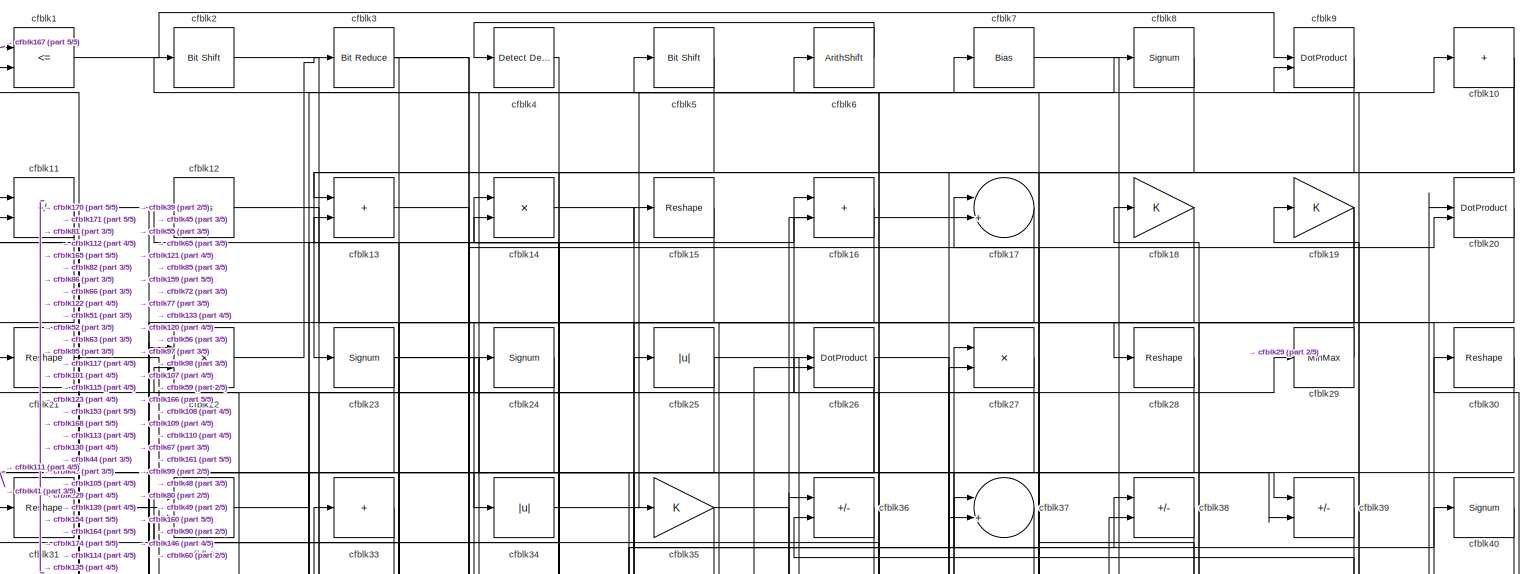
[diagram: root canvas - part 1/5, full width, top band]
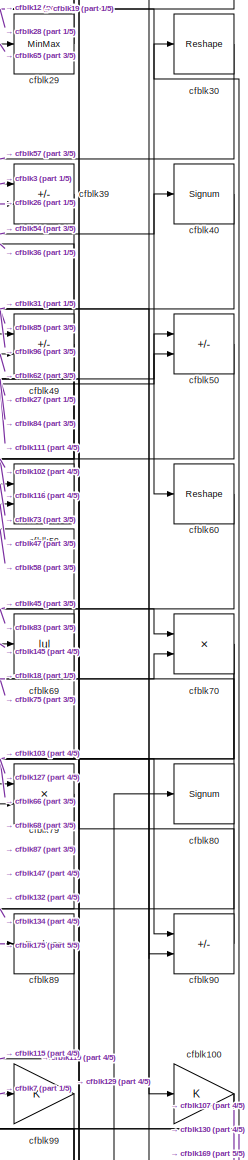
[diagram: root canvas - part 2/5, middle right region]
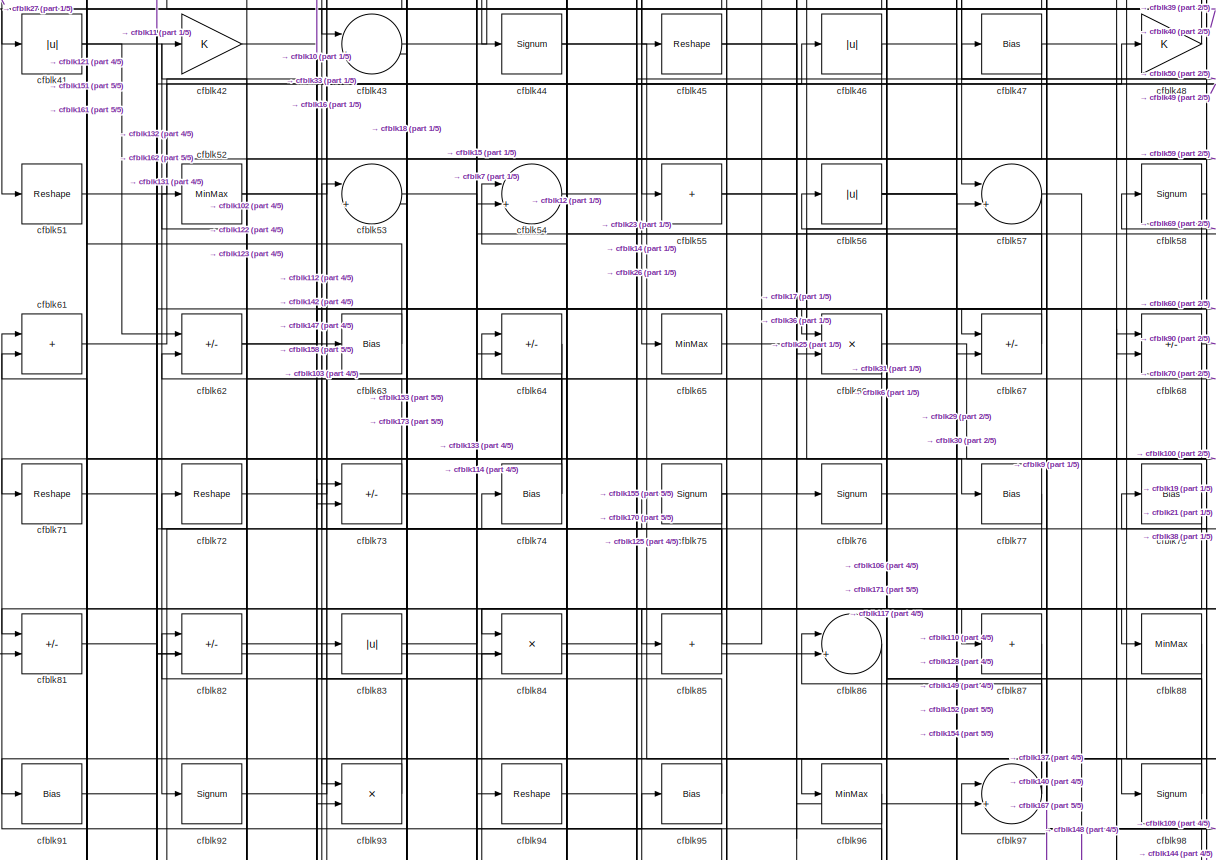
[diagram: root canvas - part 3/5, full width, middle band]
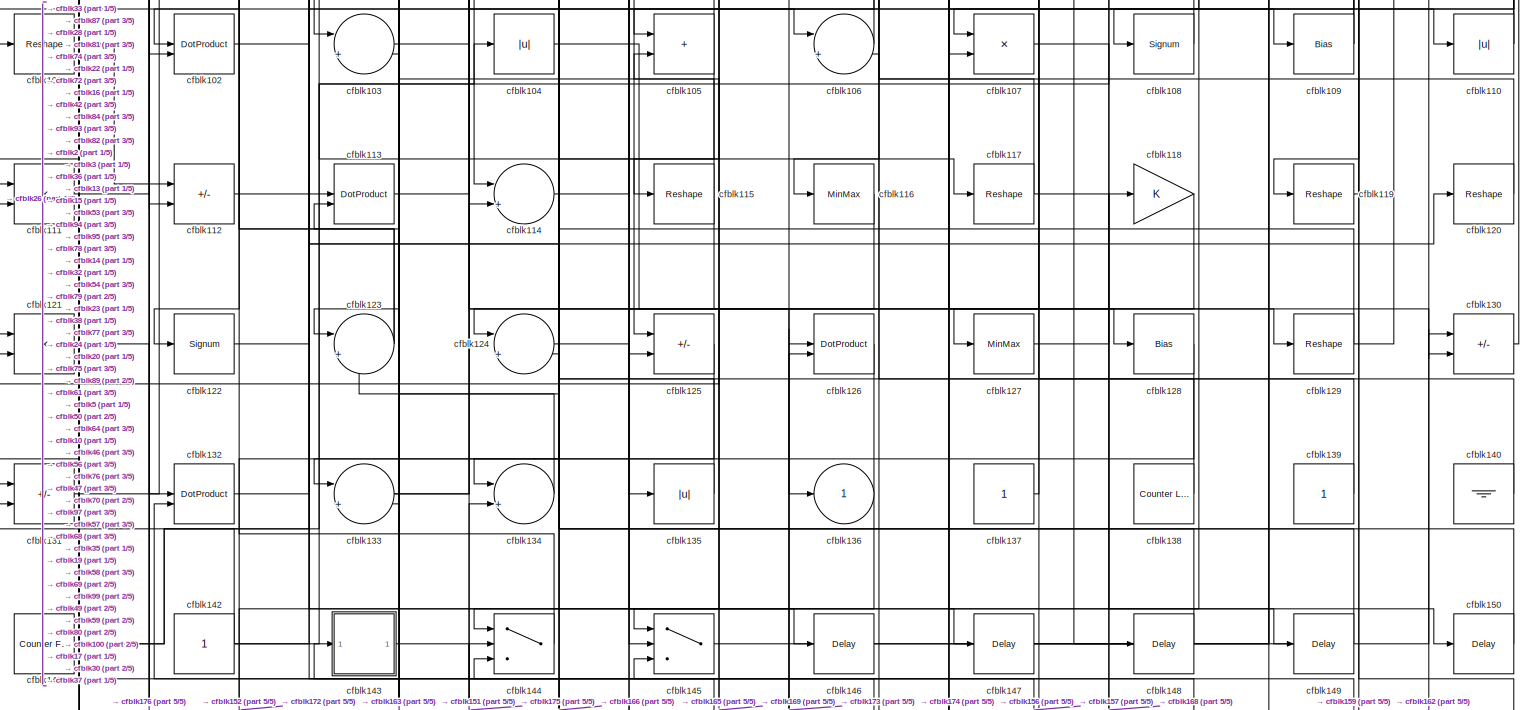
[diagram: root canvas - part 4/5, full width, bottom band]
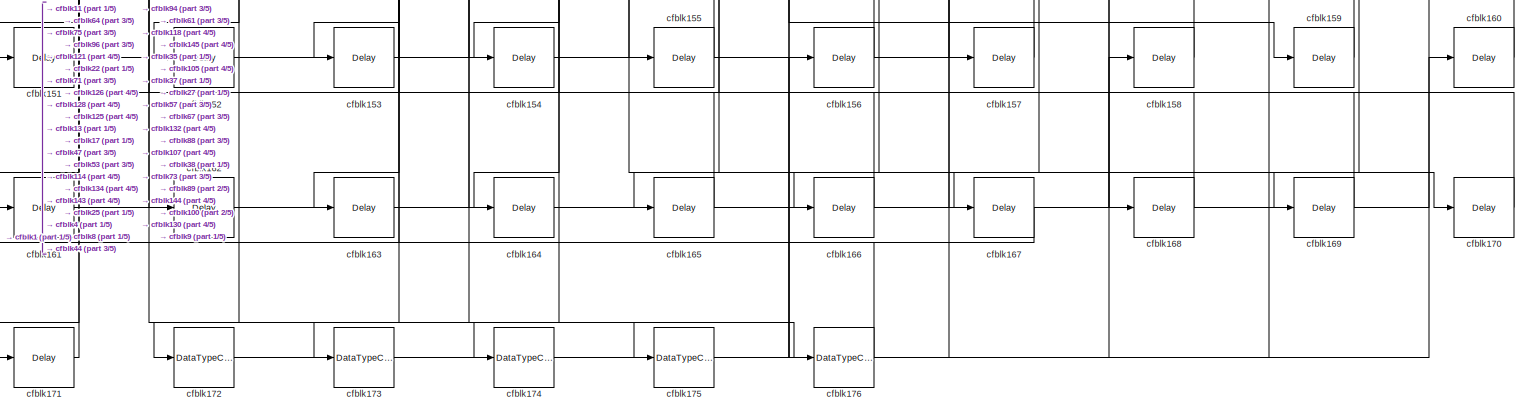
[diagram: root canvas - part 5/5, full width, bottom band]
MODEL slx_dcd6890e2913
KIND model
CONFIG AbsTol = auto
CONFIG EnableMultiTasking = off
CONFIG FixedStep = auto
CONFIG MaxStep = auto
CONFIG MinStep = auto
CONFIG RelTol = 1e-3
CONFIG SampleTimeConstraint = Unconstrained
CONFIG SolverName = VariableStepAuto
CONFIG StartTime = 0.0
CONFIG StopTime = 10.0
BLOCK [RelationalOperator] cfblk1
  InputSameDT = off
  Operator = <=
  OutDataTypeStr = boolean
BLOCK [Sum] cfblk10
  IconShape = rectangular
  Inputs = +
BLOCK [Gain] cfblk100
BLOCK [Reshape] cfblk101
BLOCK [DotProduct] cfblk102
  OutDataTypeStr = Inherit: Inherit via internal rule
BLOCK [Sum] cfblk103
  Inputs = |++
BLOCK [Abs] cfblk104
  SaturateOnIntegerOverflow = off
BLOCK [Sum] cfblk105
  IconShape = rectangular
BLOCK [Sum] cfblk106
  Inputs = |++
BLOCK [Product] cfblk107
  Inputs = */
  RndMeth = Zero
  SaturateOnIntegerOverflow = on
BLOCK [Signum] cfblk108
BLOCK [Bias] cfblk109
  Bias = 0.0
  SaturateOnIntegerOverflow = off
BLOCK [Sum] cfblk11
  IconShape = rectangular
  Inputs = +-
BLOCK [Abs] cfblk110
  SaturateOnIntegerOverflow = off
BLOCK [Product] cfblk111
  Inputs = */
  RndMeth = Zero
  SaturateOnIntegerOverflow = on
BLOCK [Sum] cfblk112
  IconShape = rectangular
  Inputs = +-
BLOCK [DotProduct] cfblk113
  OutDataTypeStr = Inherit: Inherit via internal rule
BLOCK [Sum] cfblk114
  Inputs = |++
BLOCK [Reshape] cfblk115
BLOCK [MinMax] cfblk116
BLOCK [Reshape] cfblk117
BLOCK [Gain] cfblk118
BLOCK [Reshape] cfblk119
BLOCK [Bias] cfblk12
  Bias = 0.0
  SaturateOnIntegerOverflow = off
BLOCK [Reshape] cfblk120
BLOCK [Product] cfblk121
  Inputs = */
  RndMeth = Zero
  SaturateOnIntegerOverflow = on
BLOCK [Signum] cfblk122
BLOCK [Sum] cfblk123
  Inputs = |++
BLOCK [Sum] cfblk124
  Inputs = |++
BLOCK [Sum] cfblk125
  IconShape = rectangular
  Inputs = +-
BLOCK [DotProduct] cfblk126
  OutDataTypeStr = Inherit: Inherit via internal rule
BLOCK [MinMax] cfblk127
BLOCK [Bias] cfblk128
  Bias = 0.0
  SaturateOnIntegerOverflow = off
BLOCK [Reshape] cfblk129
BLOCK [Sum] cfblk13
  IconShape = rectangular
BLOCK [Sum] cfblk130
  IconShape = rectangular
  Inputs = +-
BLOCK [Sum] cfblk131
  IconShape = rectangular
  Inputs = +-
BLOCK [DotProduct] cfblk132
  OutDataTypeStr = Inherit: Inherit via internal rule
BLOCK [Sum] cfblk133
  Inputs = |++
BLOCK [Sum] cfblk134
  Inputs = |++
BLOCK [Abs] cfblk135
  SaturateOnIntegerOverflow = off
BLOCK [Outport] cfblk136
  VectorParamsAs1DForOutWhenUnconnected = off
BLOCK [Constant] cfblk137
  SampleTime = -1
BLOCK [Reference] cfblk138  REF=hdlsllib/Sources/Counter
Limited
  SourceBlock = hdlsllib/Sources/Counter\nLimited
  SourceType = Counter Limited
BLOCK [Constant] cfblk139
  SampleTime = -1
BLOCK [Product] cfblk14
  Inputs = */
  RndMeth = Zero
  SaturateOnIntegerOverflow = on
BLOCK [Ground] cfblk140
BLOCK [Reference] cfblk141  REF=hdlsllib/Sources/Counter
Free-Running
  SourceBlock = hdlsllib/Sources/Counter\nFree-Running
  SourceType = Counter Free-Running
BLOCK [Constant] cfblk142
  SampleTime = -1
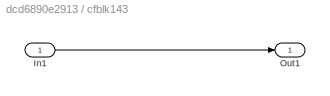
BLOCK [SubSystem] cfblk143
  LibrarySourceBlock = hdlsllib/Ports &\nSubsystems/Subsystem
BLOCK [Inport] cfblk143/In1
BLOCK [Outport] cfblk143/Out1
BLOCK [Switch] cfblk144
  InputSameDT = off
  SaturateOnIntegerOverflow = off
BLOCK [Switch] cfblk145
  InputSameDT = off
  SaturateOnIntegerOverflow = off
BLOCK [Delay] cfblk146
  InputPortMap = u0
  SampleTime = 1
BLOCK [Delay] cfblk147
  InputPortMap = u0
  SampleTime = 1
BLOCK [Delay] cfblk148
  InputPortMap = u0
  SampleTime = 1
BLOCK [Delay] cfblk149
  InputPortMap = u0
  SampleTime = 1
BLOCK [Reshape] cfblk15
BLOCK [Delay] cfblk150
  InputPortMap = u0
  SampleTime = 1
BLOCK [Delay] cfblk151
  InputPortMap = u0
  SampleTime = 1
BLOCK [Delay] cfblk152
  InputPortMap = u0
  SampleTime = 1
BLOCK [Delay] cfblk153
  InputPortMap = u0
  SampleTime = 1
BLOCK [Delay] cfblk154
  InputPortMap = u0
  SampleTime = 1
BLOCK [Delay] cfblk155
  InputPortMap = u0
  SampleTime = 1
BLOCK [Delay] cfblk156
  InputPortMap = u0
  SampleTime = 1
BLOCK [Delay] cfblk157
  InputPortMap = u0
  SampleTime = 1
BLOCK [Delay] cfblk158
  InputPortMap = u0
  SampleTime = 1
BLOCK [Delay] cfblk159
  InputPortMap = u0
  SampleTime = 1
BLOCK [Sum] cfblk16
  IconShape = rectangular
BLOCK [Delay] cfblk160
  InputPortMap = u0
  SampleTime = 1
BLOCK [Delay] cfblk161
  InputPortMap = u0
  SampleTime = 1
BLOCK [Delay] cfblk162
  InputPortMap = u0
  SampleTime = 1
BLOCK [Delay] cfblk163
  InputPortMap = u0
  SampleTime = 1
BLOCK [Delay] cfblk164
  InputPortMap = u0
  SampleTime = 1
BLOCK [Delay] cfblk165
  InputPortMap = u0
  SampleTime = 1
BLOCK [Delay] cfblk166
  InputPortMap = u0
  SampleTime = 1
BLOCK [Delay] cfblk167
  InputPortMap = u0
  SampleTime = 1
BLOCK [Delay] cfblk168
  InputPortMap = u0
  SampleTime = 1
BLOCK [Delay] cfblk169
  InputPortMap = u0
  SampleTime = 1
BLOCK [Sum] cfblk17
  Inputs = |++
BLOCK [Delay] cfblk170
  InputPortMap = u0
  SampleTime = 1
BLOCK [Delay] cfblk171
  InputPortMap = u0
  SampleTime = 1
BLOCK [DataTypeConversion] cfblk172
  RndMeth = Floor
  SaturateOnIntegerOverflow = off
BLOCK [DataTypeConversion] cfblk173
  OutDataTypeStr = uint8
  RndMeth = Floor
  SaturateOnIntegerOverflow = off
BLOCK [DataTypeConversion] cfblk174
  OutDataTypeStr = uint8
  RndMeth = Floor
  SaturateOnIntegerOverflow = off
BLOCK [DataTypeConversion] cfblk175
  RndMeth = Floor
  SaturateOnIntegerOverflow = off
BLOCK [DataTypeConversion] cfblk176
  OutDataTypeStr = uint8
  RndMeth = Floor
  SaturateOnIntegerOverflow = off
BLOCK [Gain] cfblk18
BLOCK [Gain] cfblk19
BLOCK [Reference] cfblk2  REF=hdlsllib/Logic and Bit
Operations/Bit Shift
  SourceBlock = hdlsllib/Logic and Bit\nOperations/Bit Shift
  SourceType = Bit Shift
BLOCK [DotProduct] cfblk20
  OutDataTypeStr = Inherit: Inherit via internal rule
BLOCK [Reshape] cfblk21
BLOCK [Product] cfblk22
  Inputs = */
  RndMeth = Zero
  SaturateOnIntegerOverflow = on
BLOCK [Signum] cfblk23
BLOCK [Signum] cfblk24
BLOCK [Abs] cfblk25
  SaturateOnIntegerOverflow = off
BLOCK [DotProduct] cfblk26
  OutDataTypeStr = Inherit: Inherit via internal rule
BLOCK [Product] cfblk27
  Inputs = */
  RndMeth = Zero
  SaturateOnIntegerOverflow = on
BLOCK [Reshape] cfblk28
BLOCK [MinMax] cfblk29
BLOCK [Reference] cfblk3  REF=hdlsllib/Logic and Bit
Operations/Bit Reduce
  SourceBlock = hdlsllib/Logic and Bit\nOperations/Bit Reduce
  SourceType = Bit Reduce
BLOCK [Reshape] cfblk30
BLOCK [Reshape] cfblk31
BLOCK [Sum] cfblk32
  IconShape = rectangular
BLOCK [Sum] cfblk33
  IconShape = rectangular
  Inputs = +
BLOCK [Abs] cfblk34
  SaturateOnIntegerOverflow = off
BLOCK [Gain] cfblk35
BLOCK [Sum] cfblk36
  IconShape = rectangular
  Inputs = +-
BLOCK [Sum] cfblk37
  Inputs = |++
BLOCK [Sum] cfblk38
  IconShape = rectangular
  Inputs = +-
BLOCK [Sum] cfblk39
  IconShape = rectangular
  Inputs = +-
BLOCK [Reference] cfblk4  REF=simulink/Logic and Bit
Operations/Detect
Decrease
  LibrarySourceBlock = hdlsllib/Logic and Bit\nOperations/Detect\nDecrease
  SourceBlock = simulink/Logic and Bit\nOperations/Detect\nDecrease
  SourceType = Detect Decrease
BLOCK [Signum] cfblk40
BLOCK [Abs] cfblk41
  SaturateOnIntegerOverflow = off
BLOCK [Gain] cfblk42
BLOCK [Sum] cfblk43
  Inputs = |++
BLOCK [Signum] cfblk44
BLOCK [Reshape] cfblk45
BLOCK [Abs] cfblk46
  SaturateOnIntegerOverflow = off
BLOCK [Bias] cfblk47
  Bias = 0.0
  SaturateOnIntegerOverflow = off
BLOCK [Gain] cfblk48
BLOCK [Sum] cfblk49
  IconShape = rectangular
  Inputs = +-
BLOCK [Reference] cfblk5  REF=hdlsllib/Logic and Bit
Operations/Bit Shift
  SourceBlock = hdlsllib/Logic and Bit\nOperations/Bit Shift
  SourceType = Bit Shift
BLOCK [Sum] cfblk50
  IconShape = rectangular
  Inputs = +-
BLOCK [Reshape] cfblk51
BLOCK [MinMax] cfblk52
BLOCK [Sum] cfblk53
  Inputs = |++
BLOCK [Sum] cfblk54
  Inputs = |++
BLOCK [Sum] cfblk55
  IconShape = rectangular
  Inputs = +
BLOCK [Abs] cfblk56
  SaturateOnIntegerOverflow = off
BLOCK [Sum] cfblk57
  Inputs = |++
BLOCK [Signum] cfblk58
BLOCK [Sum] cfblk59
  IconShape = rectangular
BLOCK [ArithShift] cfblk6
  BitShiftNumber = 8
  InputPortMap = u0
BLOCK [Reshape] cfblk60
BLOCK [Sum] cfblk61
  IconShape = rectangular
BLOCK [Sum] cfblk62
  IconShape = rectangular
  Inputs = +-
BLOCK [Bias] cfblk63
  Bias = 0.0
  SaturateOnIntegerOverflow = off
BLOCK [Sum] cfblk64
  IconShape = rectangular
  Inputs = +-
BLOCK [MinMax] cfblk65
BLOCK [Product] cfblk66
  Inputs = */
  RndMeth = Zero
  SaturateOnIntegerOverflow = on
BLOCK [Sum] cfblk67
  IconShape = rectangular
  Inputs = +-
BLOCK [Sum] cfblk68
  IconShape = rectangular
  Inputs = +-
BLOCK [Abs] cfblk69
  SaturateOnIntegerOverflow = off
BLOCK [Bias] cfblk7
  Bias = 0.0
  SaturateOnIntegerOverflow = off
BLOCK [Product] cfblk70
  Inputs = */
  RndMeth = Zero
  SaturateOnIntegerOverflow = on
BLOCK [Reshape] cfblk71
BLOCK [Reshape] cfblk72
BLOCK [Sum] cfblk73
  IconShape = rectangular
  Inputs = +-
BLOCK [Bias] cfblk74
  Bias = 0.0
  SaturateOnIntegerOverflow = off
BLOCK [Signum] cfblk75
BLOCK [Signum] cfblk76
BLOCK [Bias] cfblk77
  Bias = 0.0
  SaturateOnIntegerOverflow = off
BLOCK [Bias] cfblk78
  Bias = 0.0
  SaturateOnIntegerOverflow = off
BLOCK [Product] cfblk79
  Inputs = */
  RndMeth = Zero
  SaturateOnIntegerOverflow = on
BLOCK [Signum] cfblk8
BLOCK [Signum] cfblk80
BLOCK [Sum] cfblk81
  IconShape = rectangular
  Inputs = +-
BLOCK [Sum] cfblk82
  IconShape = rectangular
  Inputs = +-
BLOCK [Abs] cfblk83
  SaturateOnIntegerOverflow = off
BLOCK [Product] cfblk84
  Inputs = */
  RndMeth = Zero
  SaturateOnIntegerOverflow = on
BLOCK [Sum] cfblk85
  IconShape = rectangular
  Inputs = +
BLOCK [Sum] cfblk86
  Inputs = |++
BLOCK [Sum] cfblk87
  IconShape = rectangular
  Inputs = +
BLOCK [MinMax] cfblk88
BLOCK [Reshape] cfblk89
BLOCK [DotProduct] cfblk9
  OutDataTypeStr = Inherit: Inherit via internal rule
BLOCK [Sum] cfblk90
  IconShape = rectangular
  Inputs = +-
BLOCK [Bias] cfblk91
  Bias = 0.0
  SaturateOnIntegerOverflow = off
BLOCK [Signum] cfblk92
BLOCK [Product] cfblk93
  Inputs = */
  RndMeth = Zero
  SaturateOnIntegerOverflow = on
BLOCK [Reshape] cfblk94
BLOCK [Bias] cfblk95
  Bias = 0.0
  SaturateOnIntegerOverflow = off
BLOCK [MinMax] cfblk96
BLOCK [Sum] cfblk97
  Inputs = |++
BLOCK [Signum] cfblk98
BLOCK [Gain] cfblk99
NET cfblk100:1 -> cfblk107:1, cfblk169:1
LINE cfblk101:1 -> cfblk112:1
LINE cfblk102:1 -> cfblk109:1
LINE cfblk103:1 -> cfblk95:1
LINE cfblk104:1 -> cfblk136:1
NET cfblk105:1 -> cfblk124:1, cfblk24:1
LINE cfblk106:1 -> cfblk61:1
LINE cfblk107:1 -> cfblk168:1
LINE cfblk108:1 -> cfblk35:1
NET cfblk109:1 -> cfblk2:1, cfblk78:1
NET cfblk10:1 -> cfblk107:2, cfblk13:1
NET cfblk110:1 -> cfblk17:1, cfblk37:1
LINE cfblk111:1 -> cfblk50:1
LINE cfblk112:1 -> cfblk93:2
LINE cfblk113:1 -> cfblk20:2
LINE cfblk114:1 -> cfblk38:1
NET cfblk115:1 -> cfblk124:2, cfblk32:2
LINE cfblk116:1 -> cfblk125:2
NET cfblk117:1 -> cfblk150:1, cfblk64:1
LINE cfblk118:1 -> cfblk165:1
LINE cfblk119:1 -> cfblk49:1
NET cfblk11:1 -> cfblk81:2, cfblk86:2
LINE cfblk120:1 -> cfblk5:1
LINE cfblk121:1 -> cfblk176:1
LINE cfblk122:1 -> cfblk16:2
NET cfblk123:1 -> cfblk22:2, cfblk82:1
LINE cfblk124:1 -> cfblk146:1
LINE cfblk125:1 -> cfblk163:1
LINE cfblk126:1 -> cfblk172:1
LINE cfblk127:1 -> cfblk118:1
LINE cfblk128:1 -> cfblk152:1
NET cfblk129:1 -> cfblk32:1, cfblk80:1
LINE cfblk12:1 -> cfblk60:1
LINE cfblk130:1 -> cfblk30:1
LINE cfblk131:1 -> cfblk74:1
LINE cfblk132:1 -> cfblk79:2
NET cfblk133:1 -> cfblk15:1, cfblk94:1
LINE cfblk134:1 -> cfblk113:2
LINE cfblk135:1 -> cfblk14:1
LINE cfblk137:1 -> cfblk47:1
LINE cfblk138:1 -> cfblk106:2
LINE cfblk139:1 -> cfblk14:2
LINE cfblk13:1 -> cfblk129:1
LINE cfblk140:1 -> cfblk97:1
NET cfblk141:1 -> cfblk104:1, cfblk120:1
NET cfblk142:1 -> cfblk131:2, cfblk68:1, cfblk84:2
LINE cfblk143/In1:1 -> cfblk143/Out1:1
LINE cfblk143:1 -> cfblk175:1
LINE cfblk144:1 -> cfblk72:1
LINE cfblk145:1 -> cfblk69:1
LINE cfblk146:1 -> cfblk20:1
LINE cfblk147:1 -> cfblk79:1
LINE cfblk148:1 -> cfblk54:1
LINE cfblk149:1 -> cfblk123:2
LINE cfblk14:1 -> cfblk45:1
LINE cfblk150:1 -> cfblk113:1
LINE cfblk151:1 -> cfblk134:2
LINE cfblk152:1 -> cfblk57:2
LINE cfblk153:1 -> cfblk53:2
LINE cfblk154:1 -> cfblk67:2
LINE cfblk155:1 -> cfblk61:2
LINE cfblk156:1 -> cfblk105:2
LINE cfblk157:1 -> cfblk132:2
LINE cfblk158:1 -> cfblk73:1
LINE cfblk159:1 -> cfblk144:2
LINE cfblk15:1 -> cfblk44:1
LINE cfblk160:1 -> cfblk9:2
LINE cfblk161:1 -> cfblk38:2
LINE cfblk162:1 -> cfblk130:1
LINE cfblk163:1 -> cfblk114:2
LINE cfblk164:1 -> cfblk27:2
LINE cfblk165:1 -> cfblk22:1
LINE cfblk166:1 -> cfblk144:3
LINE cfblk167:1 -> cfblk1:1
LINE cfblk168:1 -> cfblk13:2
LINE cfblk169:1 -> cfblk145:3
LINE cfblk16:1 -> cfblk55:1
LINE cfblk170:1 -> cfblk1:2
LINE cfblk171:1 -> cfblk11:2
NET cfblk172:1 -> cfblk156:1, cfblk157:1, cfblk158:1
LINE cfblk173:1 -> cfblk126:1
LINE cfblk174:1 -> cfblk126:2
NET cfblk175:1 -> cfblk160:1, cfblk89:1
LINE cfblk176:1 -> cfblk143:1
LINE cfblk17:1 -> cfblk153:1
LINE cfblk18:1 -> cfblk43:1
NET cfblk19:1 -> cfblk108:1, cfblk82:2
LINE cfblk1:1 -> cfblk9:1
LINE cfblk20:1 -> cfblk105:1
LINE cfblk21:1 -> cfblk63:1
LINE cfblk22:1 -> cfblk3:1
NET cfblk23:1 -> cfblk135:1, cfblk37:2, cfblk81:1
LINE cfblk24:1 -> cfblk123:1
NET cfblk25:1 -> cfblk164:1, cfblk77:1
NET cfblk26:1 -> cfblk111:2, cfblk39:2, cfblk65:1
LINE cfblk27:1 -> cfblk41:1
LINE cfblk28:1 -> cfblk112:2
LINE cfblk29:1 -> cfblk28:1
LINE cfblk2:1 -> cfblk117:1
LINE cfblk30:1 -> cfblk57:1
NET cfblk31:1 -> cfblk66:2, cfblk90:2
LINE cfblk32:1 -> cfblk34:1
LINE cfblk33:1 -> cfblk101:1
LINE cfblk34:1 -> cfblk8:1
NET cfblk35:1 -> cfblk121:2, cfblk159:1
LINE cfblk36:1 -> cfblk133:1
LINE cfblk37:1 -> cfblk166:1
LINE cfblk38:1 -> cfblk51:1
LINE cfblk39:1 -> cfblk96:1
NET cfblk3:1 -> cfblk130:2, cfblk133:2, cfblk39:1
LINE cfblk40:1 -> cfblk85:1
NET cfblk41:1 -> cfblk62:1, cfblk92:1
LINE cfblk42:1 -> cfblk147:1
LINE cfblk43:1 -> cfblk7:1
NET cfblk44:1 -> cfblk170:1, cfblk98:1
NET cfblk45:1 -> cfblk70:1, cfblk97:2
NET cfblk46:1 -> cfblk102:1, cfblk149:1
NET cfblk47:1 -> cfblk173:1, cfblk59:2
LINE cfblk48:1 -> cfblk21:1
NET cfblk49:1 -> cfblk102:2, cfblk145:2, cfblk36:2
LINE cfblk4:1 -> cfblk174:1
LINE cfblk50:1 -> cfblk116:1
LINE cfblk51:1 -> cfblk10:1
NET cfblk52:1 -> cfblk16:1, cfblk25:1
LINE cfblk53:1 -> cfblk106:1
LINE cfblk54:1 -> cfblk40:1
NET cfblk55:1 -> cfblk17:2, cfblk76:1
NET cfblk56:1 -> cfblk110:1, cfblk68:2, cfblk6:1, cfblk88:1
NET cfblk57:1 -> cfblk148:1, cfblk73:2
NET cfblk58:1 -> cfblk144:1, cfblk64:2
NET cfblk59:1 -> cfblk119:1, cfblk27:1
LINE cfblk5:1 -> cfblk23:1
LINE cfblk60:1 -> cfblk83:1
LINE cfblk61:1 -> cfblk48:1
NET cfblk62:1 -> cfblk49:2, cfblk66:1
LINE cfblk63:1 -> cfblk11:1
NET cfblk64:1 -> cfblk122:1, cfblk151:1
LINE cfblk65:1 -> cfblk29:1
NET cfblk66:1 -> cfblk100:1, cfblk84:1
LINE cfblk67:1 -> cfblk12:1
NET cfblk68:1 -> cfblk90:1, cfblk91:1
NET cfblk69:1 -> cfblk103:2, cfblk58:1
LINE cfblk6:1 -> cfblk4:1
NET cfblk70:1 -> cfblk127:1, cfblk87:1
LINE cfblk71:1 -> cfblk162:1
LINE cfblk72:1 -> cfblk36:1
NET cfblk73:1 -> cfblk59:1, cfblk62:2
NET cfblk74:1 -> cfblk52:1, cfblk71:1
NET cfblk75:1 -> cfblk121:1, cfblk161:1, cfblk70:2
LINE cfblk76:1 -> cfblk128:1
LINE cfblk77:1 -> cfblk125:1
LINE cfblk78:1 -> cfblk114:1
LINE cfblk79:1 -> cfblk134:1
LINE cfblk7:1 -> cfblk99:1
NET cfblk80:1 -> cfblk111:1, cfblk18:1
LINE cfblk81:1 -> cfblk132:1
LINE cfblk82:1 -> cfblk103:1
LINE cfblk83:1 -> cfblk54:2
LINE cfblk84:1 -> cfblk50:2
NET cfblk85:1 -> cfblk26:2, cfblk43:2, cfblk53:1
LINE cfblk86:1 -> cfblk93:1
LINE cfblk87:1 -> cfblk131:1
LINE cfblk88:1 -> cfblk167:1
LINE cfblk89:1 -> cfblk115:1
LINE cfblk8:1 -> cfblk154:1
LINE cfblk90:1 -> cfblk19:1
LINE cfblk91:1 -> cfblk75:1
LINE cfblk92:1 -> cfblk46:1
LINE cfblk93:1 -> cfblk42:1
LINE cfblk94:1 -> cfblk155:1
LINE cfblk95:1 -> cfblk33:1
LINE cfblk96:1 -> cfblk171:1
NET cfblk97:1 -> cfblk26:1, cfblk86:1
NET cfblk98:1 -> cfblk31:1, cfblk56:1
LINE cfblk99:1 -> cfblk145:1
LINE cfblk9:1 -> cfblk67:1
note: NET lines group one-source signal fan-out (src -> all destinations, sorted); 1:1 wires keep LINE
